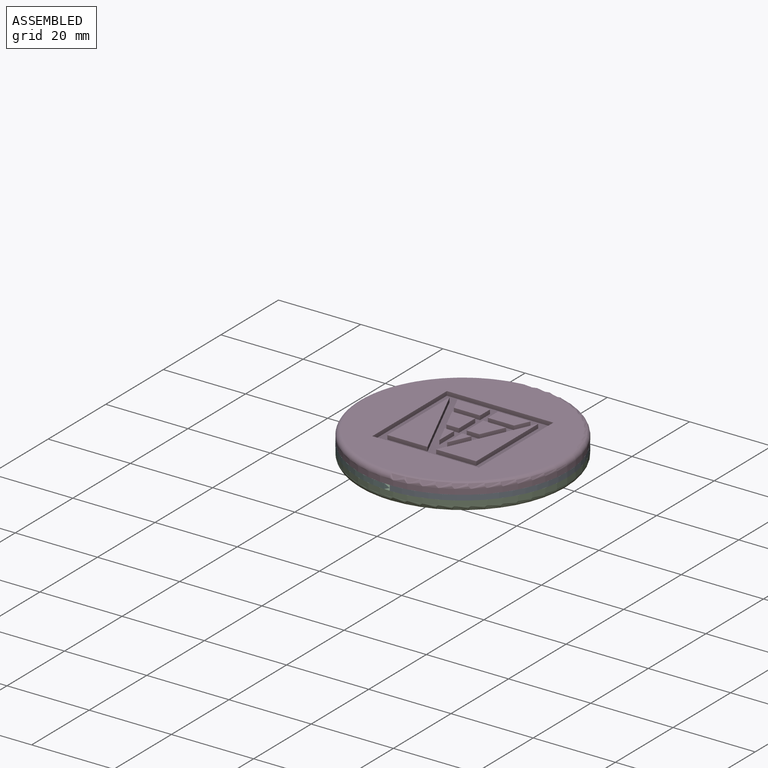
[diagram: assembled view]
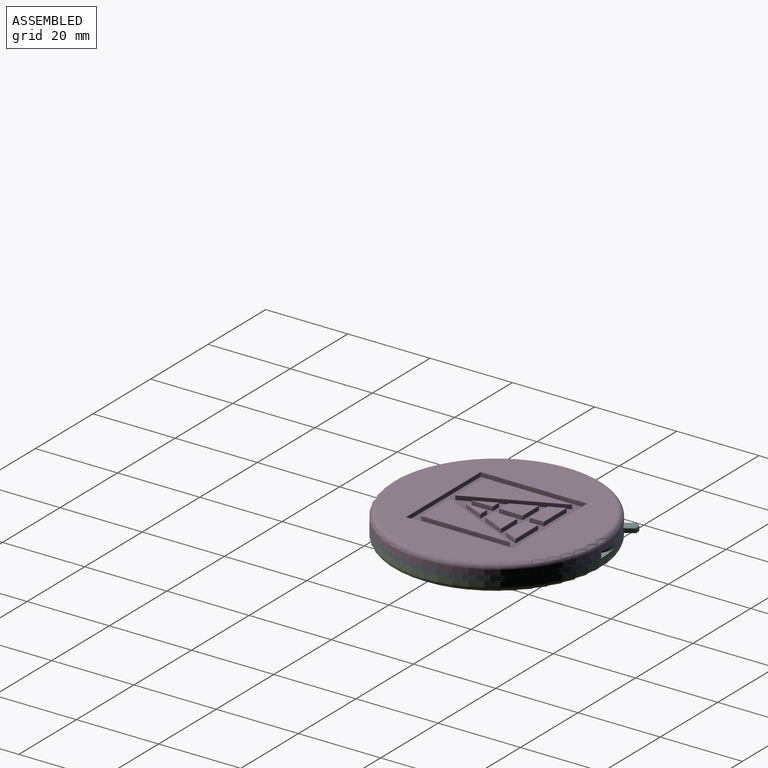
[diagram: assembled view, second angle]
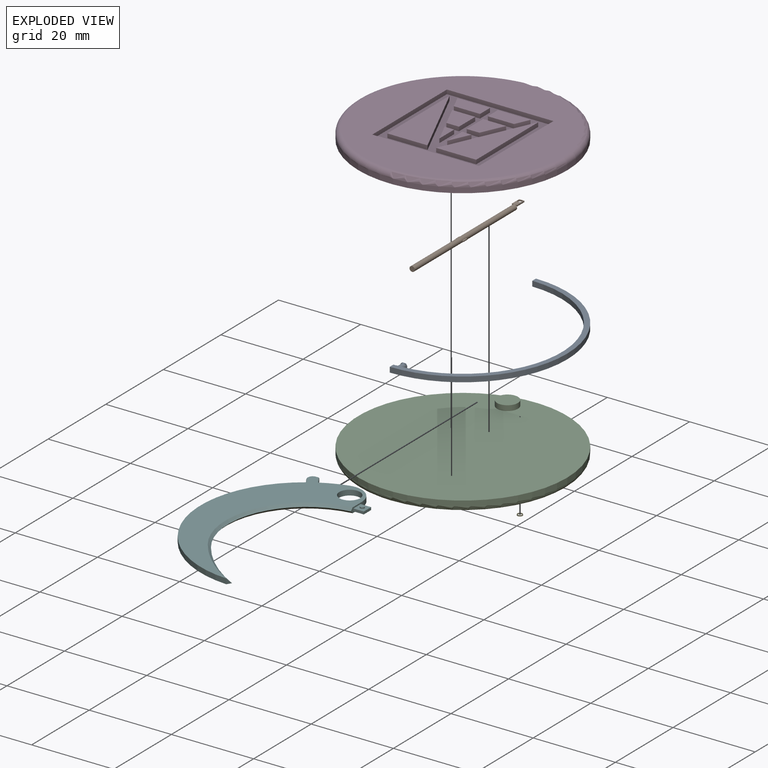
[diagram: exploded view]
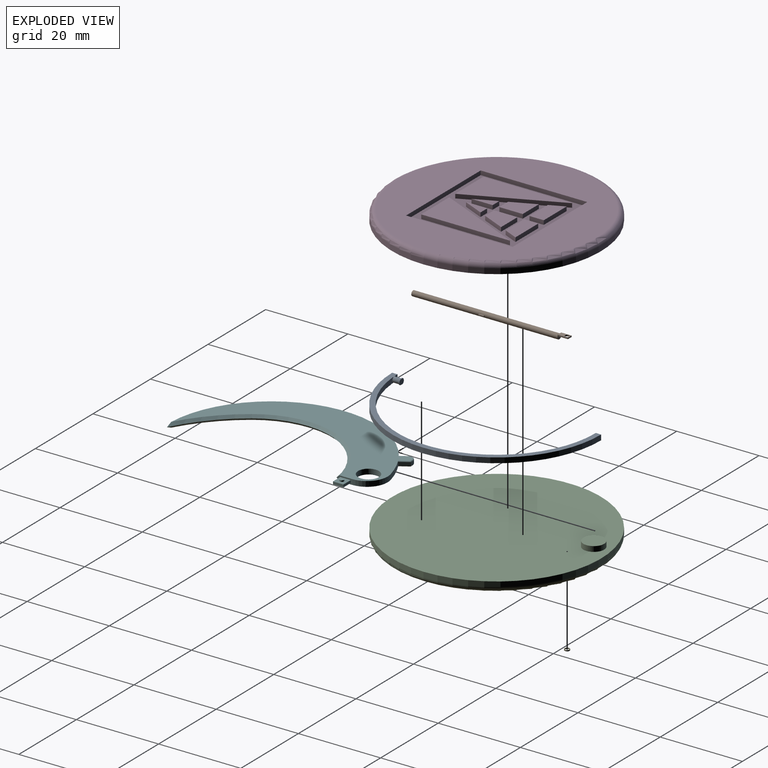
[diagram: exploded view, second angle]
ASSEMBLY  parts=6 mates=5
PART A: 20 faces, bbox 25.4x50.8x1.3 mm
  f0: cylinder r=0.76mm len=1.27mm, axis (0,1,0), area 0.4mm2, adj f3,f4,f18,f19
  f1: cylinder r=0.76mm len=1.27mm, axis (0,1,0), area 0.4mm2, adj f2,f4,f18,f19
  f2: plane 1.27x0.76mm, normal (0,-1,0), area 0.2mm2, adj f1,f5,f18,f19
  f3: plane 1.27x0.76mm, normal (0,-1,0), area 0.2mm2, adj f0,f5,f18,f19
  f4: plane 1.52x1.27mm, normal (0,1,0), area 1.7mm2, adj f0,f1,f18,f19
  f5: cylinder r=0.64mm len=1.57mm, axis (0,1,0), area 6.3mm2, adj f2,f3,f14,f15,f16,f17
  f6: plane 50.8x25.4mm, normal (0,0,1), area 98.9mm2, adj f8,f9,f10,f11,f12,f13,f15,f17
  f7: plane 50.8x25.4mm, normal (0,0,-1), area 98.9mm2, adj f8,f9,f10,f11,f12,f13,f14,f16
  f8: plane 1.27x0.07mm, normal (-1,0,0), area 0.1mm2, adj f6,f7,f11,f15,f16
  f9: cylinder r=25.4mm len=50.8mm, axis (0,0,-1), area 101.3mm2, adj f6,f7,f10,f13
  f10: plane 1.27x1.27mm, normal (-1,0,0), area 1.6mm2, adj f6,f7,f9,f11
  f11: cylinder r=24.13mm len=1.27mm, axis (0,0,1), area 0.8mm2, adj f6,f7,f8,f10
  f12: cylinder r=24.13mm len=48.18mm, axis (0,0,1), area 93.9mm2, adj f6,f7,f13,f14,f17
  f13: plane 1.27x1.27mm, normal (-1,0,0), area 1.6mm2, adj f6,f7,f9,f12
  f14: plane 0.64x0.63mm, normal (0,1,0), area 0.1mm2, adj f5,f7,f12
  f15: plane 0.64x0.64mm, normal (0,1,0), area 0.1mm2, adj f5,f6,f8
  f16: plane 0.64x0.64mm, normal (0,1,0), area 0.1mm2, adj f5,f7,f8
  f17: plane 0.64x0.64mm, normal (0,1,0), area 0.1mm2, adj f5,f6,f12
  f18: plane 0.84x0.25mm, normal (0,0,-1), area 0.2mm2, adj f0,f1,f2,f3,f4
  f19: plane 0.84x0.25mm, normal (0,0,1), area 0.2mm2, adj f0,f1,f2,f3,f4
PART B: 21 faces, bbox 1.9x38.1x1.3 mm
  f0: cylinder r=0.63mm len=35.56mm, axis (0,-1,0), area 141.2mm2, adj f1,f6,f7,f8,f12,f13,f14,f15
  f1: plane 0.33x0.25mm, normal (0,-1,0), area 0.1mm2, adj f0,f16,f17,f18
  f2: plane 2.54x0.32mm, normal (-1,0,0), area 0.8mm2, adj f4,f5,f7,f9
  f3: plane 2.54x0.32mm, normal (1,0,0), area 0.8mm2, adj f4,f5,f6,f9
  f4: plane 2.54x1.27mm, normal (0,0,1), area 2.4mm2, adj f2,f3,f5,f6,f7,f10
  f5: plane 1.27x0.32mm, normal (0,1,0), area 0.4mm2, adj f2,f3,f4,f9
  f6: plane 0.64x0.32mm, normal (0,-1,0), area 0.1mm2, adj f0,f3,f4,f9
  f7: plane 0.64x0.32mm, normal (0,-1,0), area 0.1mm2, adj f0,f2,f4,f9
  f8: plane 1.27x0.95mm, normal (0,1,0), area 1mm2, adj f0,f9
  f9: plane 2.54x1.27mm, normal (0,0,-1), area 2.4mm2, adj f2,f3,f5,f6,f7,f8,f10
  f10: cylinder r=0.51mm len=1.02mm, axis (0,0,1), area 1mm2, adj f4,f9
  f11: plane 1.27x0.25mm, normal (1,0,0), area 0.3mm2, adj f12,f13,f14,f19
  f12: plane 0.33x0.25mm, normal (0,1,0), area 0.1mm2, adj f0,f11,f13,f14
  f13: plane 1.27x0.33mm, normal (0,0,-1), area 0.4mm2, adj f0,f11,f12,f19
  f14: plane 1.27x0.33mm, normal (0,0,1), area 0.4mm2, adj f0,f11,f12,f19
  f15: plane 0.33x0.25mm, normal (0,1,0), area 0.1mm2, adj f0,f16,f17,f18
  f16: plane 1.27x0.33mm, normal (0,0,1), area 0.4mm2, adj f0,f1,f15,f17
  f17: plane 1.27x0.25mm, normal (-1,0,0), area 0.3mm2, adj f1,f15,f16,f18
  f18: plane 1.27x0.33mm, normal (0,0,-1), area 0.4mm2, adj f0,f1,f15,f17
  f19: plane 0.33x0.25mm, normal (0,-1,0), area 0.1mm2, adj f0,f11,f13,f14
  f20: plane 1.27x1.27mm, normal (0,-1,0), area 1.3mm2, adj f0
PART C: 6 faces, bbox 55x55x3.8 mm
  f0: cylinder r=25.4mm len=50.8mm, axis (0,0,-1), area 202.7mm2, adj f1,f5
  f1: plane 50.8x50.8mm, normal (0,0,1), area 2006.6mm2, adj f0,f3
  f2: plane 48.26x48.26mm, normal (0,0,-1), area 1829.2mm2, adj f5
  f3: cylinder r=2.54mm len=5.08mm, axis (0,0,-1), area 20.3mm2, adj f1,f4
  f4: plane 5.08x5.08mm, normal (0,0,1), area 20.3mm2, adj f3
  f5: torus R=24.13mm, axis (0,0,1), area 312.6mm2, adj f0,f2
PART D: 45 faces, bbox 55x55x2.5 mm
  f0: plane 48.26x48.26mm, normal (0,0,1), area 1157.1mm2, adj f3,f22,f23,f24,f33
  f1: cylinder r=25.4mm len=50.8mm, axis (0,0,-1), area 202.7mm2, adj f2,f3
  f2: plane 50.8x50.8mm, normal (0,0,-1), area 2026.8mm2, adj f1
  f3: torus R=24.13mm, axis (0,0,1), area 312.6mm2, adj f0,f1
  f4: plane 5.62x1.02mm, normal (0,1,0), area 5.7mm2, adj f5,f35,f36,f44
  f5: plane 5.67x2.56mm, normal (0.91,-0.41,0), area 6.3mm2, adj f4,f6,f36,f44
  f6: plane 3.06x1.02mm, normal (0,-1,0), area 3.1mm2, adj f5,f35,f36,f44
  f7: plane 3.06x1.02mm, normal (0,-1,0), area 3.1mm2, adj f8,f27,f36,f43
  f8: plane 5.67x2.56mm, normal (-0.91,-0.41,0), area 6.3mm2, adj f7,f9,f36,f43
  f9: plane 5.62x1.02mm, normal (0,1,0), area 5.7mm2, adj f8,f27,f36,f43
  f10: plane 5.13x1.02mm, normal (1,0,0), area 5.2mm2, adj f11,f28,f36,f42
  f11: plane 5.13x2.32mm, normal (-0.91,-0.41,0), area 5.7mm2, adj f10,f28,f36,f42
  f12: plane 5.13x2.32mm, normal (0.91,-0.41,0), area 5.7mm2, adj f13,f29,f36,f41
  f13: plane 5.13x1.02mm, normal (-1,0,0), area 5.2mm2, adj f12,f29,f36,f41
  f14: plane 3.47x1.57mm, normal (-0.91,-0.41,0), area 3.9mm2, adj f15,f30,f36,f40
  f15: plane 7.94x1.02mm, normal (0,1,0), area 8.1mm2, adj f14,f16,f36,f40
  f16: plane 3.47x1.02mm, normal (1,0,0), area 3.5mm2, adj f15,f30,f36,f40
  f17: plane 7.94x1.02mm, normal (0,1,0), area 8.1mm2, adj f18,f31,f36,f39
  f18: plane 3.47x1.57mm, normal (0.91,-0.41,0), area 3.9mm2, adj f17,f19,f36,f39
  f19: plane 6.37x1.02mm, normal (0,-1,0), area 6.5mm2, adj f18,f31,f36,f39
  f20: plane 21.59x9.75mm, normal (-0.91,0.41,0), area 24.1mm2, adj f21,f32,f36,f38
  f21: plane 21.59x1.02mm, normal (1,0,0), area 21.9mm2, adj f20,f32,f36,f38
  f22: plane 25.93x1.02mm, normal (1,0,0), area 26.3mm2, adj f0,f23,f33,f36
  f23: plane 25.93x1.02mm, normal (0,1,0), area 26.3mm2, adj f0,f22,f24,f36
  f24: plane 25.93x1.02mm, normal (-1,0,0), area 26.3mm2, adj f0,f23,f33,f36
  f25: plane 9.75x1.02mm, normal (0,-1,0), area 9.9mm2, adj f26,f34,f36,f37
  f26: plane 21.59x1.02mm, normal (-1,0,0), area 21.9mm2, adj f25,f34,f36,f37
  f27: plane 5.67x1.02mm, normal (1,0,0), area 5.8mm2, adj f7,f9,f36,f43
  f28: plane 2.32x1.02mm, normal (0,1,0), area 2.4mm2, adj f10,f11,f36,f42
  f29: plane 2.32x1.02mm, normal (0,1,0), area 2.4mm2, adj f12,f13,f36,f41
  f30: plane 6.37x1.02mm, normal (0,-1,0), area 6.5mm2, adj f14,f16,f36,f40
  f31: plane 3.47x1.02mm, normal (-1,0,0), area 3.5mm2, adj f17,f19,f36,f39
  f32: plane 9.75x1.02mm, normal (0,-1,0), area 9.9mm2, adj f20,f21,f36,f38
  f33: plane 25.93x1.02mm, normal (0,-1,0), area 26.3mm2, adj f0,f22,f24,f36
  f34: plane 21.59x9.75mm, normal (0.91,0.41,0), area 24.1mm2, adj f25,f26,f36,f37
  f35: plane 5.67x1.02mm, normal (-1,0,0), area 5.8mm2, adj f4,f6,f36,f44
  f36: plane 25.93x25.93mm, normal (0,0,1), area 350.8mm2, adj f4,f5,f6,f7,f8,f9,f10,f11
  f37: plane 21.59x9.75mm, normal (0,0,1), area 105.3mm2, adj f25,f26,f34
  f38: plane 21.59x9.75mm, normal (0,0,1), area 105.3mm2, adj f20,f21,f32
  f39: plane 7.94x3.47mm, normal (0,0,1), area 24.8mm2, adj f17,f18,f19,f31
  f40: plane 7.94x3.47mm, normal (0,0,1), area 24.8mm2, adj f14,f15,f16,f30
  f41: plane 5.13x2.32mm, normal (0,0,1), area 5.9mm2, adj f12,f13,f29
  f42: plane 5.13x2.32mm, normal (0,0,1), area 5.9mm2, adj f10,f11,f28
  f43: plane 5.67x5.62mm, normal (0,0,1), area 24.6mm2, adj f7,f8,f9,f27
  f44: plane 5.67x5.62mm, normal (0,0,1), area 24.6mm2, adj f4,f5,f6,f35
PART E: 4 faces, bbox 1.3x1.3x0.3 mm
  f0: cylinder r=0.64mm len=1.27mm, axis (0,0,-1), area 1mm2, adj f1,f2
  f1: plane 1.27x1.27mm, normal (0,0,1), area 0.5mm2, adj f0,f3
  f2: plane 1.27x1.27mm, normal (0,0,-1), area 0.5mm2, adj f0,f3
  f3: cylinder r=0.51mm len=1.02mm, axis (0,0,1), area 0.8mm2, adj f1,f2
PART F: 32 faces, bbox 27.9x50.7x1.3 mm
  f0: cylinder r=25.4mm len=6.17mm, axis (0,0,-1), area 8.2mm2, adj f4,f5,f6,f13,f26,f30
  f1: plane 0.76x0.71mm, normal (0,1,0), area 0.5mm2, adj f4,f23,f27,f31
  f2: plane 1.56x0.97mm, normal (-0.85,-0.53,0), area 1.4mm2, adj f3,f23,f24,f28
  f3: cylinder r=25.4mm len=46.43mm, axis (0,0,-1), area 80.9mm2, adj f2,f5,f6,f10,f11,f24,f28
  f4: plane 2.16x1.34mm, normal (0.85,0.53,0), area 1.9mm2, adj f0,f1,f26,f30
  f5: plane 50.12x25.4mm, normal (0,0,1), area 459.1mm2, adj f0,f3,f7,f9,f11,f12,f13,f28
  f6: plane 50.12x25.4mm, normal (0,0,-1), area 459.1mm2, adj f0,f3,f7,f8,f10,f12,f13,f24
  f7: plane 3.8x1.27mm, normal (1,0,0), area 2.8mm2, adj f5,f6,f8,f9,f13,f14,f15,f16
  f8: cone r=19.69mm half-angle=45deg, axis (0,0,-1), area 35.7mm2, adj f6,f7,f9,f10
  f9: cone r=19.69mm half-angle=45deg, axis (0,0,1), area 35.7mm2, adj f5,f7,f8,f11
  f10: cone r=36.89mm half-angle=45deg, axis (0,0,-1), area 15.4mm2, adj f3,f6,f8,f11
  f11: cone r=36.25mm half-angle=45deg, axis (0,0,1), area 15.4mm2, adj f3,f5,f9,f10
  f12: cylinder r=2.54mm len=5.08mm, axis (0,0,1), area 20.3mm2, adj f5,f6
  f13: cylinder r=5.08mm len=6.35mm, axis (0,0,-1), area 11.8mm2, adj f0,f5,f6,f7
  f14: plane 2.54x0.64mm, normal (0,-1,0), area 1.6mm2, adj f7,f15,f17,f18
  f15: plane 2.54x2.54mm, normal (0,0,-1), area 5.6mm2, adj f7,f14,f16,f18,f21
  f16: plane 2.54x0.64mm, normal (0,1,0), area 1.6mm2, adj f7,f15,f17,f18
  f17: plane 2.54x2.54mm, normal (0,0,1), area 5.6mm2, adj f7,f14,f16,f18,f19
  f18: plane 2.54x0.64mm, normal (1,0,0), area 1.6mm2, adj f14,f15,f16,f17
  f19: cylinder r=0.51mm len=1.02mm, axis (0,0,-1), area 1mm2, adj f17,f20
  f20: plane 1.02x1.02mm, normal (0,0,1), area 0.8mm2, adj f19
  f21: cylinder r=0.51mm len=1.02mm, axis (0,0,1), area 1mm2, adj f15,f22
  f22: plane 1.02x1.02mm, normal (0,0,-1), area 0.8mm2, adj f21
  f23: cylinder r=1.27mm len=1.94mm, axis (0,0,-1), area 2.1mm2, adj f1,f2,f25,f29
  f24: cylinder r=0.25mm len=1.69mm, axis (0.53,-0.85,0), area 0.7mm2, adj f2,f3,f6,f25
  f25: torus R=1.02mm, axis (0,0,1), area 1mm2, adj f6,f23,f24,f27
  f26: cylinder r=0.25mm len=2.29mm, axis (-0.53,0.85,0), area 1mm2, adj f0,f4,f6,f27
  f27: cylinder r=0.25mm len=0.71mm, axis (-1,0,0), area 0.3mm2, adj f1,f6,f25,f26
  f28: cylinder r=0.25mm len=1.69mm, axis (-0.53,0.85,0), area 0.7mm2, adj f2,f3,f5,f29
  f29: torus R=1.02mm, axis (0,0,1), area 1mm2, adj f5,f23,f28,f31
  f30: cylinder r=0.25mm len=2.29mm, axis (0.53,-0.85,0), area 1mm2, adj f0,f4,f5,f31
  f31: cylinder r=0.25mm len=0.71mm, axis (1,0,0), area 0.3mm2, adj f1,f5,f29,f30
PLACE A t=(17.67,4.59,-7.85)mm
PLACE B t=(18.94,23.26,-7.22)mm
PLACE C t=(17.67,4.59,-10.39)mm
PLACE D t=(17.67,4.59,-6.58)mm
PLACE E t=(18.94,22.62,-7.85)mm
PLACE F t=(17.67,4.59,-7.85)mm
MATE fastened A.f9 <-> C.f0  axis (0,0,-1) through (17.67,4.59,-7.85)mm
MATE fastened E.f3 <-> F.f19  axis (0,0,-1) through (18.94,22.62,-7.85)mm
MATE fastened D.f1 <-> A.f9  axis (0,0,-1) through (17.67,4.59,-6.58)mm
MATE fastened B.f10 <-> F.f19  axis (0,0,1) through (18.94,22.62,-6.58)mm
MATE fastened F.f12 <-> C.f3  axis (0,0,1) through (13.86,25.55,-6.58)mm
